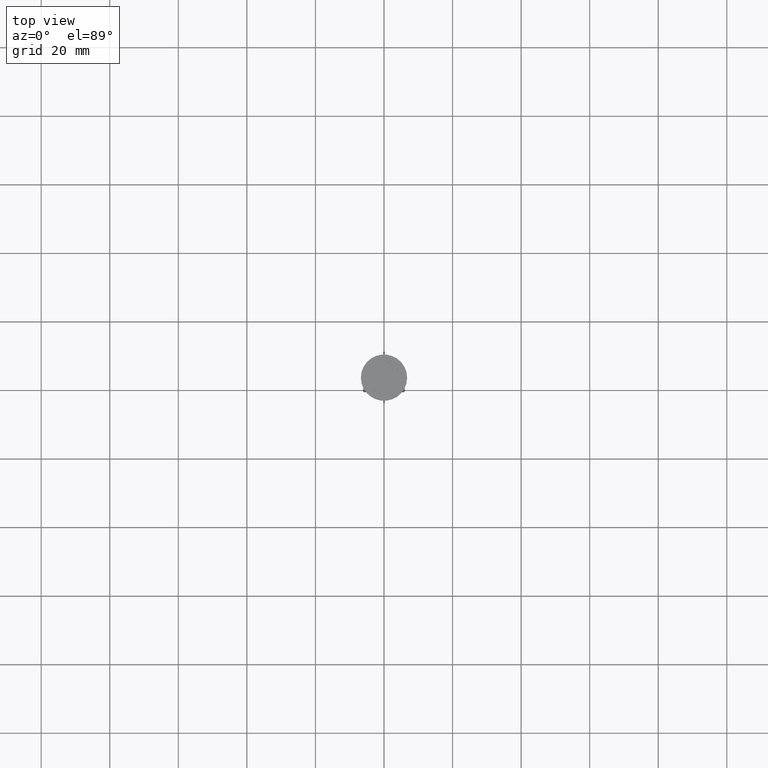
[diagram: clean part render]
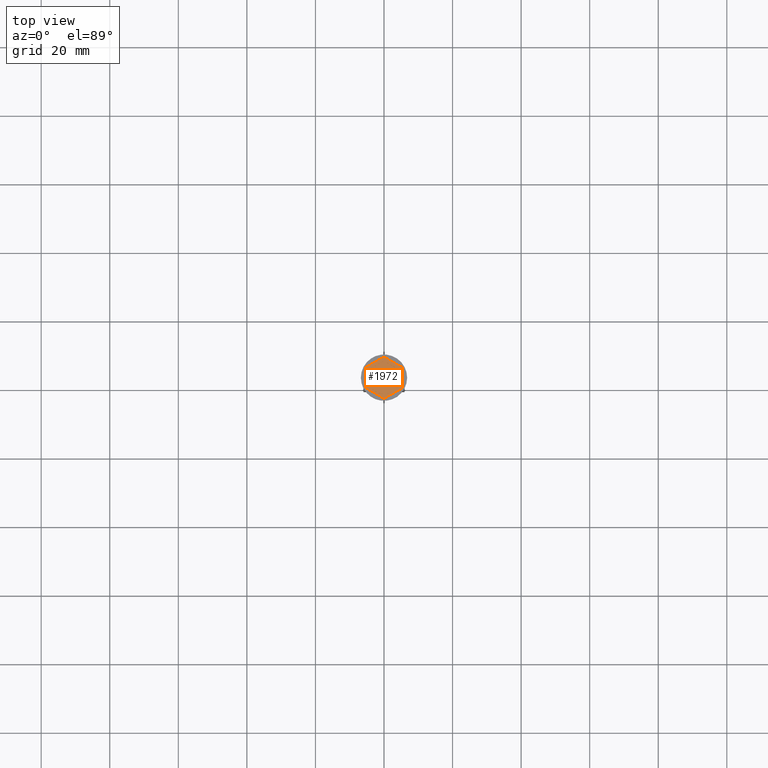
[diagram: same view with one face highlighted and labeled with its STEP entity id]
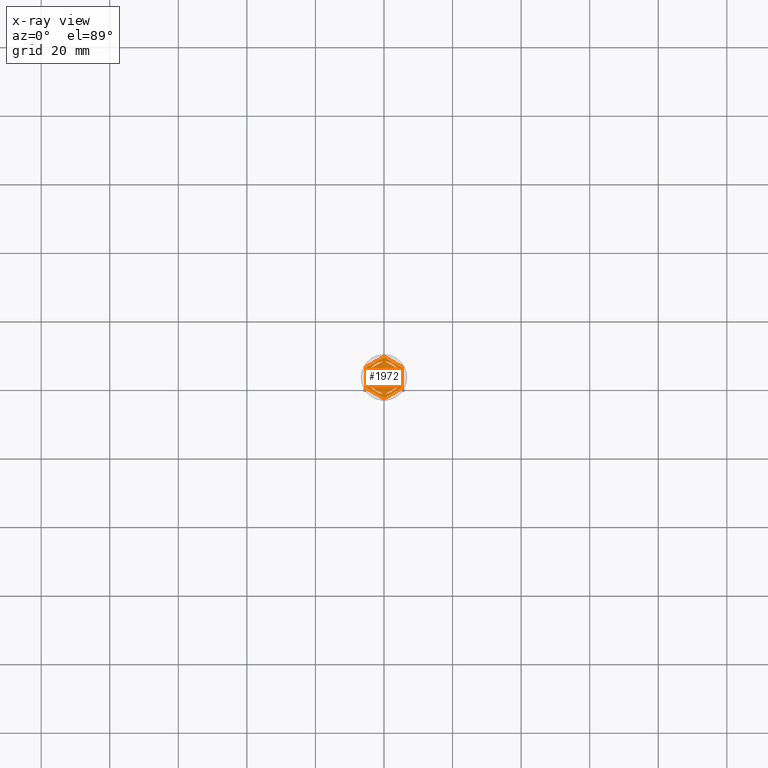
[diagram: x-ray of the same camera — body ghosted, the highlighted face saturated]
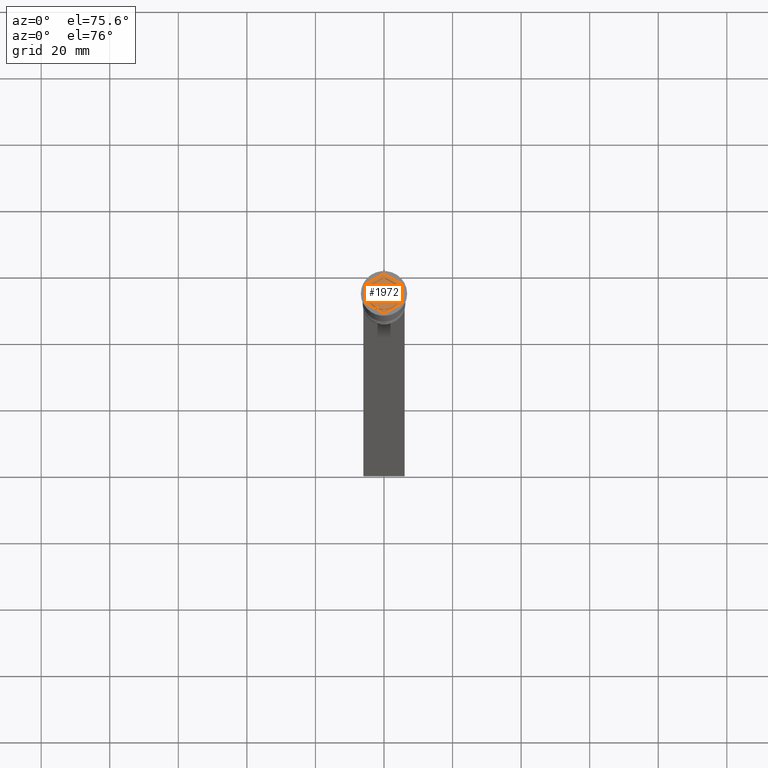
[diagram: same view with one face highlighted and labeled with its STEP entity id]
A machine part, top view. The second image highlights one B-rep face of the part: STEP entity #1972.
The next image is the same camera in x-ray: the body ghosted, the highlighted face saturated — about 0% of this face is hidden behind the body in this view.
A second angle (auxiliary view) of the same face is appended — the face is thin or edge-on in the first view.
In plain terms, the highlighted planar face has unit normal (0, 0, 1).
Its self-contained STEP definition (entity closure, byte-faithful):
#3 = VERTEX_POINT ( 'NONE', #1593 ) ;
#55 = FACE_BOUND ( 'NONE', #484, .T. ) ;
#73 = VERTEX_POINT ( 'NONE', #1435 ) ;
#94 = DIRECTION ( 'NONE',  ( 1.000000000000000000, 0.000000000000000000, 0.000000000000000000 ) ) ;
#111 = EDGE_CURVE ( 'NONE', #3, #1626, #807, .T. ) ;
#114 = DIRECTION ( 'NONE',  ( 0.000000000000000000, 0.000000000000000000, 1.000000000000000000 ) ) ;
#136 = LINE ( 'NONE', #1583, #2131 ) ;
#140 = VERTEX_POINT ( 'NONE', #987 ) ;
#142 = ORIENTED_EDGE ( 'NONE', *, *, #1895, .T. ) ;
#157 = CARTESIAN_POINT ( 'NONE',  ( -5.250000000000000888, 3.031088913245535643, -1.000000000000000000 ) ) ;
#162 = ORIENTED_EDGE ( 'NONE', *, *, #111, .T. ) ;
#165 = CARTESIAN_POINT ( 'NONE',  ( -8.673617379884035472E-16, -4.907477288111819824, -1.000000000000000888 ) ) ;
#173 = VERTEX_POINT ( 'NONE', #996 ) ;
#229 = CARTESIAN_POINT ( 'NONE',  ( 0.2878826929126150347, -4.741268137863686505, -1.000000000000000888 ) ) ;
#261 = EDGE_CURVE ( 'NONE', #1452, #575, #1770, .T. ) ;
#272 = CARTESIAN_POINT ( 'NONE',  ( 4.249999999999999112, 2.121320343559644162, -1.000000000000000888 ) ) ;
#273 = ORIENTED_EDGE ( 'NONE', *, *, #1613, .F. ) ;
#279 = CARTESIAN_POINT ( 'NONE',  ( 0.000000000000000000, 0.000000000000000000, -1.000000000000000000 ) ) ;
#281 = DIRECTION ( 'NONE',  ( 0.000000000000000000, 0.000000000000000000, 1.000000000000000000 ) ) ;
#292 = VECTOR ( 'NONE', #2127, 1000.000000000000000 ) ;
#305 = CARTESIAN_POINT ( 'NONE',  ( 0.000000000000000000, 0.000000000000000000, -1.000000000000000000 ) ) ;
#306 = VERTEX_POINT ( 'NONE', #364 ) ;
#313 = EDGE_LOOP ( 'NONE', ( #1115, #1280 ) ) ;
#356 = EDGE_CURVE ( 'NONE', #73, #1034, #1042, .T. ) ;
#364 = CARTESIAN_POINT ( 'NONE',  ( -5.250000000000000888, 3.031088913245535643, -1.000000000000000000 ) ) ;
#374 = DIRECTION ( 'NONE',  ( 0.000000000000000000, 1.000000000000000000, 0.000000000000000000 ) ) ;
#378 = EDGE_CURVE ( 'NONE', #1185, #388, #1219, .T. ) ;
#388 = VERTEX_POINT ( 'NONE', #229 ) ;
#394 = LINE ( 'NONE', #1984, #2328 ) ;
#405 = LINE ( 'NONE', #1097, #1264 ) ;
#428 = FACE_BOUND ( 'NONE', #313, .T. ) ;
#482 = CIRCLE ( 'NONE', #1688, 4.750000000000000888 ) ;
#484 = EDGE_LOOP ( 'NONE', ( #1705, #864 ) ) ;
#489 = VERTEX_POINT ( 'NONE', #939 ) ;
#513 = EDGE_LOOP ( 'NONE', ( #273, #1672 ) ) ;
#527 = EDGE_CURVE ( 'NONE', #2268, #2008, #1950, .T. ) ;
#547 = VECTOR ( 'NONE', #1254, 1000.000000000000000 ) ;
#575 = VERTEX_POINT ( 'NONE', #1530 ) ;
#585 = EDGE_LOOP ( 'NONE', ( #2149, #1325, #1983 ) ) ;
#609 = DIRECTION ( 'NONE',  ( 0.000000000000000000, 0.000000000000000000, 1.000000000000000000 ) ) ;
#625 = LINE ( 'NONE', #1882, #1187 ) ;
#684 = CARTESIAN_POINT ( 'NONE',  ( 4.250000000000000000, 2.453738644055910800, -1.000000000000000888 ) ) ;
#701 = ORIENTED_EDGE ( 'NONE', *, *, #2164, .T. ) ;
#716 = DIRECTION ( 'NONE',  ( 0.8660254037844387076, -0.4999999999999998335, 0.000000000000000000 ) ) ;
#725 = DIRECTION ( 'NONE',  ( -0.8660254037844385966, -0.5000000000000000000, 0.000000000000000000 ) ) ;
#755 = DIRECTION ( 'NONE',  ( 0.000000000000000000, 0.000000000000000000, 1.000000000000000000 ) ) ;
#756 = CARTESIAN_POINT ( 'NONE',  ( 8.729740977282959667E-16, -6.062177826491071286, -1.000000000000000000 ) ) ;
#800 = DIRECTION ( 'NONE',  ( 1.000000000000000000, 0.000000000000000000, 0.000000000000000000 ) ) ;
#807 = LINE ( 'NONE', #2207, #1533 ) ;
#856 = AXIS2_PLACEMENT_3D ( 'NONE', #1120, #755, #2040 ) ;
#864 = ORIENTED_EDGE ( 'NONE', *, *, #1710, .F. ) ;
#891 = AXIS2_PLACEMENT_3D ( 'NONE', #305, #2077, #2266 ) ;
#893 = AXIS2_PLACEMENT_3D ( 'NONE', #1440, #935, #1132 ) ;
#904 = EDGE_LOOP ( 'NONE', ( #2112, #2179 ) ) ;
#930 = VECTOR ( 'NONE', #1088, 1000.000000000000114 ) ;
#935 = DIRECTION ( 'NONE',  ( 0.000000000000000000, 0.000000000000000000, 1.000000000000000000 ) ) ;
#939 = CARTESIAN_POINT ( 'NONE',  ( -3.962117307087385409, 2.619947794304041899, -1.000000000000000888 ) ) ;
#945 = FACE_BOUND ( 'NONE', #1021, .T. ) ;
#946 = CARTESIAN_POINT ( 'NONE',  ( 8.729740977282959667E-16, -6.062177826491071286, -1.000000000000000000 ) ) ;
#977 = CARTESIAN_POINT ( 'NONE',  ( 0.000000000000000000, 0.000000000000000000, -1.000000000000000000 ) ) ;
#987 = CARTESIAN_POINT ( 'NONE',  ( -3.962117307087385409, -2.619947794304041899, -1.000000000000000888 ) ) ;
#996 = CARTESIAN_POINT ( 'NONE',  ( -0.2878826929126160894, -4.741268137863686505, -1.000000000000000888 ) ) ;
#1021 = EDGE_LOOP ( 'NONE', ( #2102, #2338 ) ) ;
#1034 = VERTEX_POINT ( 'NONE', #272 ) ;
#1042 = CIRCLE ( 'NONE', #1342, 4.750000000000000888 ) ;
#1050 = DIRECTION ( 'NONE',  ( -1.767428939690775055E-16, -1.000000000000000000, 0.000000000000000000 ) ) ;
#1081 = CARTESIAN_POINT ( 'NONE',  ( -4.250000000000000000, -2.453738644055909912, -1.000000000000000888 ) ) ;
#1088 = DIRECTION ( 'NONE',  ( 0.8660254037844385966, 0.4999999999999999445, 0.000000000000000000 ) ) ;
#1097 = CARTESIAN_POINT ( 'NONE',  ( -5.250000000000000888, -3.031088913245536087, -1.000000000000000000 ) ) ;
#1115 = ORIENTED_EDGE ( 'NONE', *, *, #2121, .F. ) ;
#1120 = CARTESIAN_POINT ( 'NONE',  ( 0.000000000000000000, 0.000000000000000000, -1.000000000000000000 ) ) ;
#1123 = EDGE_CURVE ( 'NONE', #575, #1452, #482, .T. ) ;
#1132 = DIRECTION ( 'NONE',  ( 1.000000000000000000, 0.000000000000000000, 0.000000000000000000 ) ) ;
#1165 = LINE ( 'NONE', #1892, #1382 ) ;
#1176 = VERTEX_POINT ( 'NONE', #1896 ) ;
#1185 = VERTEX_POINT ( 'NONE', #1925 ) ;
#1187 = VECTOR ( 'NONE', #1376, 1000.000000000000000 ) ;
#1219 = LINE ( 'NONE', #165, #1762 ) ;
#1221 = LINE ( 'NONE', #157, #547 ) ;
#1233 = AXIS2_PLACEMENT_3D ( 'NONE', #977, #609, #94 ) ;
#1254 = DIRECTION ( 'NONE',  ( 0.000000000000000000, -1.000000000000000000, 0.000000000000000000 ) ) ;
#1264 = VECTOR ( 'NONE', #1821, 1000.000000000000000 ) ;
#1280 = ORIENTED_EDGE ( 'NONE', *, *, #1654, .F. ) ;
#1281 = CARTESIAN_POINT ( 'NONE',  ( -4.750000000000000888, 0.000000000000000000, -1.000000000000000000 ) ) ;
#1315 = EDGE_CURVE ( 'NONE', #306, #1694, #1221, .T. ) ;
#1322 = FACE_BOUND ( 'NONE', #904, .T. ) ;
#1325 = ORIENTED_EDGE ( 'NONE', *, *, #1660, .F. ) ;
#1342 = AXIS2_PLACEMENT_3D ( 'NONE', #2301, #1624, #1599 ) ;
#1376 = DIRECTION ( 'NONE',  ( 0.8660254037844385966, 0.5000000000000001110, -0.000000000000000000 ) ) ;
#1382 = VECTOR ( 'NONE', #2094, 1000.000000000000000 ) ;
#1401 = CARTESIAN_POINT ( 'NONE',  ( -5.250000000000000888, -3.031088913245536087, -1.000000000000000000 ) ) ;
#1408 = LINE ( 'NONE', #1081, #292 ) ;
#1416 = VECTOR ( 'NONE', #1050, 1000.000000000000000 ) ;
#1435 = CARTESIAN_POINT ( 'NONE',  ( 4.249999999999999112, -2.121320343559645938, -1.000000000000000888 ) ) ;
#1440 = CARTESIAN_POINT ( 'NONE',  ( 0.000000000000000000, 0.000000000000000000, -1.000000000000000000 ) ) ;
#1452 = VERTEX_POINT ( 'NONE', #2022 ) ;
#1453 = VECTOR ( 'NONE', #716, 1000.000000000000000 ) ;
#1454 = CIRCLE ( 'NONE', #2250, 4.750000000000000888 ) ;
#1465 = VERTEX_POINT ( 'NONE', #1825 ) ;
#1487 = FACE_BOUND ( 'NONE', #585, .T. ) ;
#1505 = CARTESIAN_POINT ( 'NONE',  ( -4.250000000000000000, -2.121320343559643717, -1.000000000000000888 ) ) ;
#1517 = FACE_BOUND ( 'NONE', #513, .T. ) ;
#1527 = DIRECTION ( 'NONE',  ( -0.8660254037844385966, 0.4999999999999998890, 0.000000000000000000 ) ) ;
#1530 = CARTESIAN_POINT ( 'NONE',  ( 3.962117307087384521, 2.619947794304043232, -1.000000000000000888 ) ) ;
#1531 = CIRCLE ( 'NONE', #891, 4.750000000000000888 ) ;
#1532 = EDGE_CURVE ( 'NONE', #140, #173, #1531, .T. ) ;
#1533 = VECTOR ( 'NONE', #1527, 1000.000000000000227 ) ;
#1583 = CARTESIAN_POINT ( 'NONE',  ( 0.000000000000000000, 6.062177826491072175, -1.000000000000000000 ) ) ;
#1593 = CARTESIAN_POINT ( 'NONE',  ( 5.250000000000000888, 3.031088913245536087, -1.000000000000000000 ) ) ;
#1599 = DIRECTION ( 'NONE',  ( 1.000000000000000000, 0.000000000000000000, 0.000000000000000000 ) ) ;
#1613 = EDGE_CURVE ( 'NONE', #388, #1185, #1454, .T. ) ;
#1624 = DIRECTION ( 'NONE',  ( 0.000000000000000000, 0.000000000000000000, 1.000000000000000000 ) ) ;
#1626 = VERTEX_POINT ( 'NONE', #1735 ) ;
#1628 = LINE ( 'NONE', #946, #930 ) ;
#1646 = CIRCLE ( 'NONE', #893, 4.750000000000000888 ) ;
#1654 = EDGE_CURVE ( 'NONE', #489, #1176, #625, .T. ) ;
#1656 = FACE_OUTER_BOUND ( 'NONE', #2302, .T. ) ;
#1660 = EDGE_CURVE ( 'NONE', #2006, #2268, #1165, .T. ) ;
#1672 = ORIENTED_EDGE ( 'NONE', *, *, #378, .F. ) ;
#1685 = AXIS2_PLACEMENT_3D ( 'NONE', #279, #2252, #800 ) ;
#1688 = AXIS2_PLACEMENT_3D ( 'NONE', #2101, #114, #2261 ) ;
#1694 = VERTEX_POINT ( 'NONE', #1401 ) ;
#1695 = PLANE ( 'NONE',  #856 ) ;
#1702 = DIRECTION ( 'NONE',  ( 1.000000000000000000, 0.000000000000000000, 0.000000000000000000 ) ) ;
#1705 = ORIENTED_EDGE ( 'NONE', *, *, #1532, .F. ) ;
#1710 = EDGE_CURVE ( 'NONE', #173, #140, #1408, .T. ) ;
#1727 = EDGE_CURVE ( 'NONE', #1034, #73, #1956, .T. ) ;
#1735 = CARTESIAN_POINT ( 'NONE',  ( 0.000000000000000000, 6.062177826491072175, -1.000000000000000000 ) ) ;
#1762 = VECTOR ( 'NONE', #1943, 1000.000000000000000 ) ;
#1770 = LINE ( 'NONE', #684, #1453 ) ;
#1777 = EDGE_CURVE ( 'NONE', #1626, #306, #136, .T. ) ;
#1778 = CARTESIAN_POINT ( 'NONE',  ( 4.249999999999999112, -2.453738644055910356, -1.000000000000000888 ) ) ;
#1821 = DIRECTION ( 'NONE',  ( 0.8660254037844387076, -0.4999999999999998335, 0.000000000000000000 ) ) ;
#1825 = CARTESIAN_POINT ( 'NONE',  ( 5.250000000000000888, -3.031088913245536087, -1.000000000000000000 ) ) ;
#1882 = CARTESIAN_POINT ( 'NONE',  ( 4.336808689942017736E-16, 4.907477288111819824, -1.000000000000000888 ) ) ;
#1892 = CARTESIAN_POINT ( 'NONE',  ( -4.250000000000000000, 2.453738644055909468, -1.000000000000000888 ) ) ;
#1895 = EDGE_CURVE ( 'NONE', #1465, #3, #394, .T. ) ;
#1896 = CARTESIAN_POINT ( 'NONE',  ( -0.2878826929126160894, 4.741268137863686505, -1.000000000000000888 ) ) ;
#1925 = CARTESIAN_POINT ( 'NONE',  ( 3.962117307087384521, -2.619947794304042787, -1.000000000000000888 ) ) ;
#1943 = DIRECTION ( 'NONE',  ( -0.8660254037844387076, -0.4999999999999999445, 0.000000000000000000 ) ) ;
#1950 = CIRCLE ( 'NONE', #1685, 4.750000000000000888 ) ;
#1956 = LINE ( 'NONE', #1778, #1416 ) ;
#1972 = ADVANCED_FACE ( 'NONE', ( #1322, #945, #1517, #55, #1487, #428, #1656 ), #1695, .T. ) ;
#1983 = ORIENTED_EDGE ( 'NONE', *, *, #2259, .F. ) ;
#1984 = CARTESIAN_POINT ( 'NONE',  ( 5.250000000000000888, -3.031088913245536087, -1.000000000000000000 ) ) ;
#1999 = ORIENTED_EDGE ( 'NONE', *, *, #1315, .T. ) ;
#2006 = VERTEX_POINT ( 'NONE', #1505 ) ;
#2008 = VERTEX_POINT ( 'NONE', #1281 ) ;
#2022 = CARTESIAN_POINT ( 'NONE',  ( 0.2878826929126145906, 4.741268137863685617, -1.000000000000000888 ) ) ;
#2040 = DIRECTION ( 'NONE',  ( 1.000000000000000000, 0.000000000000000000, -0.000000000000000000 ) ) ;
#2077 = DIRECTION ( 'NONE',  ( 0.000000000000000000, 0.000000000000000000, 1.000000000000000000 ) ) ;
#2094 = DIRECTION ( 'NONE',  ( 0.000000000000000000, 1.000000000000000000, 0.000000000000000000 ) ) ;
#2099 = ORIENTED_EDGE ( 'NONE', *, *, #2104, .T. ) ;
#2100 = CIRCLE ( 'NONE', #1233, 4.750000000000000888 ) ;
#2101 = CARTESIAN_POINT ( 'NONE',  ( 0.000000000000000000, 0.000000000000000000, -1.000000000000000000 ) ) ;
#2102 = ORIENTED_EDGE ( 'NONE', *, *, #356, .F. ) ;
#2104 = EDGE_CURVE ( 'NONE', #2142, #1465, #1628, .T. ) ;
#2112 = ORIENTED_EDGE ( 'NONE', *, *, #1123, .F. ) ;
#2121 = EDGE_CURVE ( 'NONE', #1176, #489, #1646, .T. ) ;
#2127 = DIRECTION ( 'NONE',  ( -0.8660254037844385966, 0.5000000000000001110, 0.000000000000000000 ) ) ;
#2131 = VECTOR ( 'NONE', #725, 1000.000000000000227 ) ;
#2142 = VERTEX_POINT ( 'NONE', #756 ) ;
#2149 = ORIENTED_EDGE ( 'NONE', *, *, #527, .F. ) ;
#2164 = EDGE_CURVE ( 'NONE', #1694, #2142, #405, .T. ) ;
#2179 = ORIENTED_EDGE ( 'NONE', *, *, #261, .F. ) ;
#2202 = ORIENTED_EDGE ( 'NONE', *, *, #1777, .T. ) ;
#2207 = CARTESIAN_POINT ( 'NONE',  ( 5.250000000000000888, 3.031088913245536087, -1.000000000000000000 ) ) ;
#2245 = CARTESIAN_POINT ( 'NONE',  ( -4.250000000000000000, 2.121320343559643717, -1.000000000000000888 ) ) ;
#2250 = AXIS2_PLACEMENT_3D ( 'NONE', #2274, #281, #1702 ) ;
#2252 = DIRECTION ( 'NONE',  ( 0.000000000000000000, 0.000000000000000000, 1.000000000000000000 ) ) ;
#2259 = EDGE_CURVE ( 'NONE', #2008, #2006, #2100, .T. ) ;
#2261 = DIRECTION ( 'NONE',  ( 1.000000000000000000, 0.000000000000000000, 0.000000000000000000 ) ) ;
#2266 = DIRECTION ( 'NONE',  ( 1.000000000000000000, 0.000000000000000000, 0.000000000000000000 ) ) ;
#2268 = VERTEX_POINT ( 'NONE', #2245 ) ;
#2274 = CARTESIAN_POINT ( 'NONE',  ( 0.000000000000000000, 0.000000000000000000, -1.000000000000000000 ) ) ;
#2301 = CARTESIAN_POINT ( 'NONE',  ( 0.000000000000000000, 0.000000000000000000, -1.000000000000000000 ) ) ;
#2302 = EDGE_LOOP ( 'NONE', ( #162, #2202, #1999, #701, #2099, #142 ) ) ;
#2328 = VECTOR ( 'NONE', #374, 1000.000000000000000 ) ;
#2338 = ORIENTED_EDGE ( 'NONE', *, *, #1727, .F. ) ;